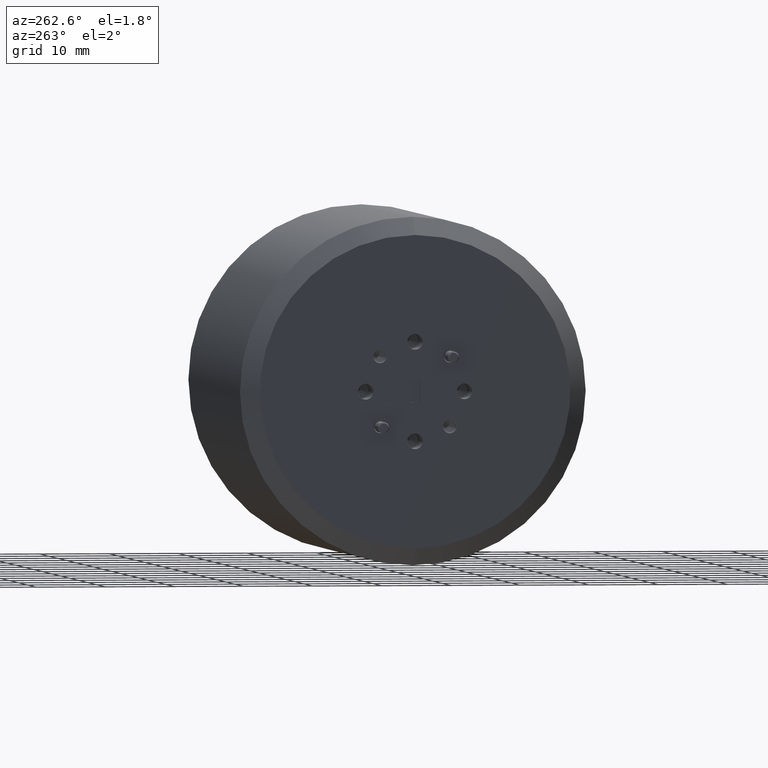
[diagram: clean part render]
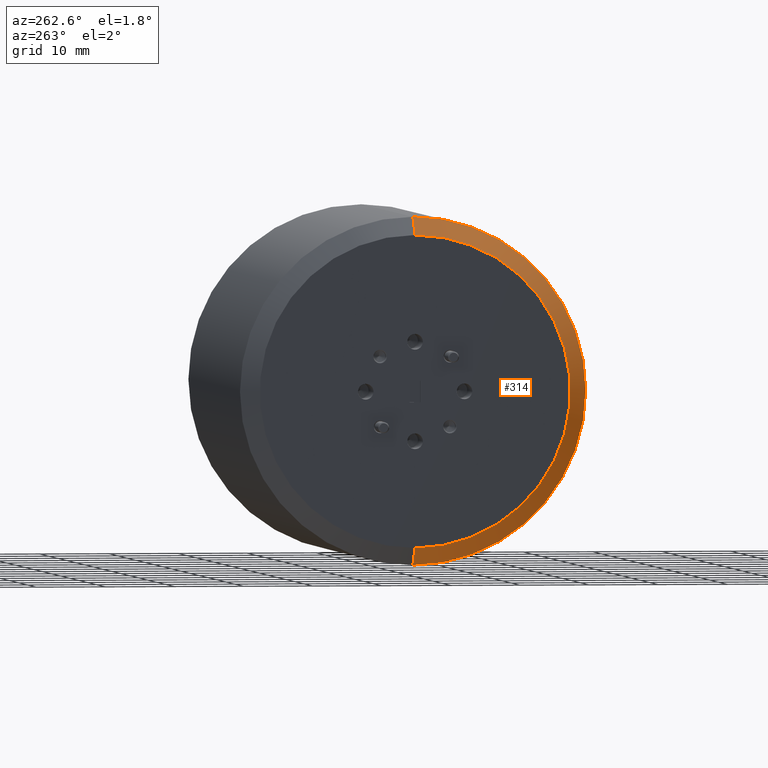
[diagram: same view with one face highlighted and labeled with its STEP entity id]
A machine part, auxiliary view. The second image highlights one B-rep face of the part: STEP entity #314.
In plain terms, the highlighted conical surface has half-angle 45 deg.
Its self-contained STEP definition (entity closure, byte-faithful):
#314 = ADVANCED_FACE ( 'NONE', ( #11685 ), #4672, .T. ) ;
#367 = CARTESIAN_POINT ( 'NONE',  ( -59.99987999999999700, 2.908413683295047900E-015, 22.47899999999999200 ) ) ;
#2315 = DIRECTION ( 'NONE',  ( 0.0000000000000000000, 0.0000000000000000000, -1.000000000000000000 ) ) ;
#3395 = CARTESIAN_POINT ( 'NONE',  ( -57.45987999999999800, 0.0000000000000000000, 0.0000000000000000000 ) ) ;
#4672 = CONICAL_SURFACE ( 'NONE', #10823, 25.01899999999999100, 0.7853981633974482800 ) ;
#5797 = CARTESIAN_POINT ( 'NONE',  ( -57.45987999999999800, 3.063943826786762800E-015, 25.01899999999999100 ) ) ;
#5884 = DIRECTION ( 'NONE',  ( 0.0000000000000000000, 0.0000000000000000000, -1.000000000000000000 ) ) ;
#7089 = CARTESIAN_POINT ( 'NONE',  ( -57.45987999999999800, 0.0000000000000000000, -25.01899999999999100 ) ) ;
#9365 = VERTEX_POINT ( 'NONE', #14260 ) ;
#9424 = EDGE_CURVE ( 'NONE', #29672, #15471, #22054, .T. ) ;
#10823 = AXIS2_PLACEMENT_3D ( 'NONE', #3395, #13174, #5884 ) ;
#11685 = FACE_OUTER_BOUND ( 'NONE', #12057, .T. ) ;
#12057 = EDGE_LOOP ( 'NONE', ( #14475, #19708, #28432, #22823 ) ) ;
#13174 = DIRECTION ( 'NONE',  ( 1.000000000000000000, -0.0000000000000000000, -0.0000000000000000000 ) ) ;
#13191 = AXIS2_PLACEMENT_3D ( 'NONE', #28467, #26135, #14060 ) ;
#14060 = DIRECTION ( 'NONE',  ( 0.0000000000000000000, 0.0000000000000000000, -1.000000000000000000 ) ) ;
#14260 = CARTESIAN_POINT ( 'NONE',  ( -59.99987999999999700, 0.0000000000000000000, -22.47899999999999200 ) ) ;
#14475 = ORIENTED_EDGE ( 'NONE', *, *, #17661, .F. ) ;
#15344 = CARTESIAN_POINT ( 'NONE',  ( -57.45987999999999800, 3.063943826786762000E-015, 25.01899999999999100 ) ) ;
#15436 = DIRECTION ( 'NONE',  ( 0.7071067811865475700, 8.659560562354931600E-017, 0.7071067811865474600 ) ) ;
#15471 = VERTEX_POINT ( 'NONE', #7089 ) ;
#15739 = LINE ( 'NONE', #15344, #23829 ) ;
#15767 = EDGE_CURVE ( 'NONE', #20822, #9365, #22784, .T. ) ;
#17167 = AXIS2_PLACEMENT_3D ( 'NONE', #23181, #23599, #2315 ) ;
#17661 = EDGE_CURVE ( 'NONE', #20822, #29672, #15739, .T. ) ;
#19708 = ORIENTED_EDGE ( 'NONE', *, *, #15767, .T. ) ;
#20822 = VERTEX_POINT ( 'NONE', #367 ) ;
#21924 = CARTESIAN_POINT ( 'NONE',  ( -57.45987999999999800, 0.0000000000000000000, -25.01899999999999100 ) ) ;
#22054 = CIRCLE ( 'NONE', #17167, 25.01899999999999100 ) ;
#22784 = CIRCLE ( 'NONE', #13191, 22.47899999999999200 ) ;
#22823 = ORIENTED_EDGE ( 'NONE', *, *, #9424, .F. ) ;
#23181 = CARTESIAN_POINT ( 'NONE',  ( -57.45987999999999800, 0.0000000000000000000, 0.0000000000000000000 ) ) ;
#23599 = DIRECTION ( 'NONE',  ( 1.000000000000000000, -0.0000000000000000000, -0.0000000000000000000 ) ) ;
#23829 = VECTOR ( 'NONE', #15436, 1000.000000000000000 ) ;
#24080 = DIRECTION ( 'NONE',  ( 0.7071067811865475700, 0.0000000000000000000, -0.7071067811865474600 ) ) ;
#25974 = VECTOR ( 'NONE', #24080, 1000.000000000000000 ) ;
#26135 = DIRECTION ( 'NONE',  ( 1.000000000000000000, -0.0000000000000000000, -0.0000000000000000000 ) ) ;
#27070 = EDGE_CURVE ( 'NONE', #9365, #15471, #29240, .T. ) ;
#28432 = ORIENTED_EDGE ( 'NONE', *, *, #27070, .T. ) ;
#28467 = CARTESIAN_POINT ( 'NONE',  ( -59.99987999999999700, 0.0000000000000000000, 0.0000000000000000000 ) ) ;
#29240 = LINE ( 'NONE', #21924, #25974 ) ;
#29672 = VERTEX_POINT ( 'NONE', #5797 ) ;